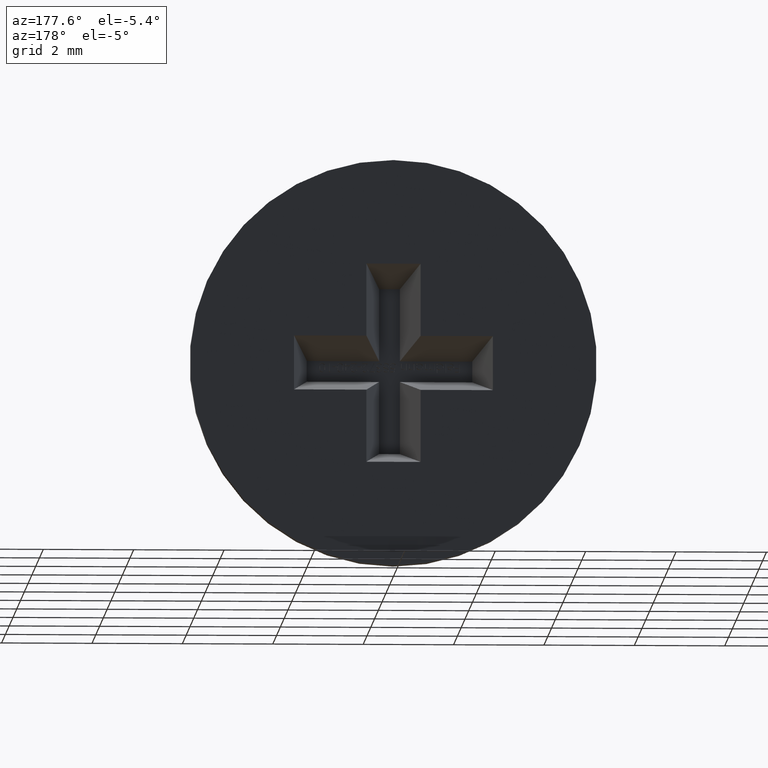
[diagram: clean part render]
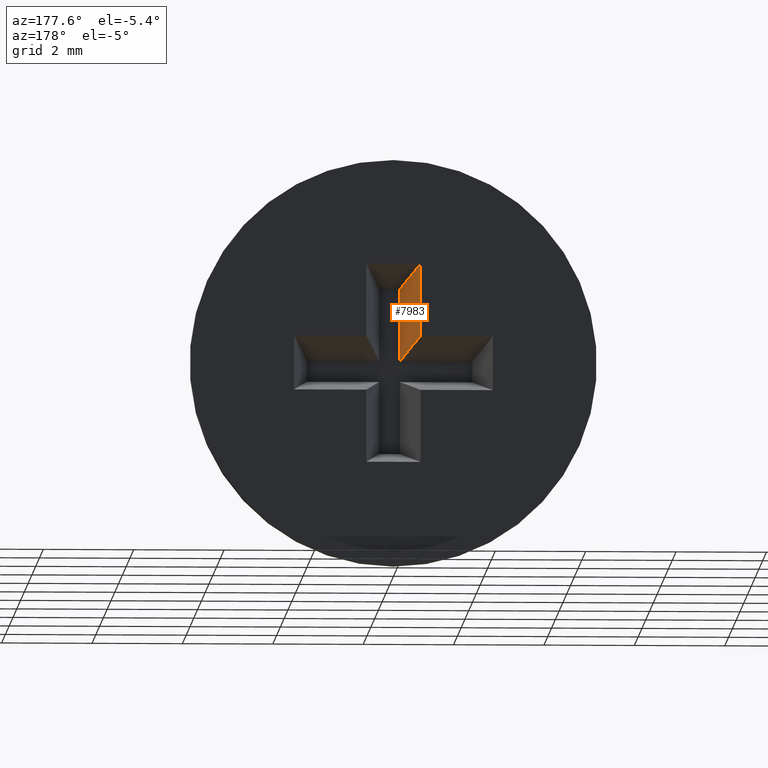
[diagram: same view with one face highlighted and labeled with its STEP entity id]
A machine part, auxiliary view. The second image highlights one B-rep face of the part: STEP entity #7983.
In plain terms, the highlighted planar face has unit normal (-0.9848, -0.1736, 0).
Its self-contained STEP definition (entity closure, byte-faithful):
#223 = CARTESIAN_POINT ( 'NONE',  ( -0.5999999999999996400, 10.00000000000000000, 0.5999999999999999800 ) ) ;
#260 = VERTEX_POINT ( 'NONE', #8926 ) ;
#425 = VECTOR ( 'NONE', #12482, 1000.000000000000000 ) ;
#3270 = LINE ( 'NONE', #11535, #9956 ) ;
#3275 = CARTESIAN_POINT ( 'NONE',  ( -0.2297133405122232200, 7.900000000000000400, 0.5999999999999999800 ) ) ;
#3622 = CARTESIAN_POINT ( 'NONE',  ( -0.5531663053212211300, 9.734392918822719000, 2.153166305321222200 ) ) ;
#3802 = LINE ( 'NONE', #3622, #12905 ) ;
#4278 = EDGE_CURVE ( 'NONE', #14238, #260, #3270, .T. ) ;
#4345 = DIRECTION ( 'NONE',  ( 1.355252715606880300E-016, 0.0000000000000000000, 1.000000000000000000 ) ) ;
#4961 = VECTOR ( 'NONE', #4345, 1000.000000000000000 ) ;
#5247 = VERTEX_POINT ( 'NONE', #9698 ) ;
#5397 = ORIENTED_EDGE ( 'NONE', *, *, #10713, .T. ) ;
#5970 = PLANE ( 'NONE',  #12052 ) ;
#6201 = DIRECTION ( 'NONE',  ( 0.1736481776669303600, -0.9848077530122080200, 0.0000000000000000000 ) ) ;
#6451 = ORIENTED_EDGE ( 'NONE', *, *, #13526, .F. ) ;
#6732 = EDGE_LOOP ( 'NONE', ( #5397, #8037, #6451, #9371 ) ) ;
#7640 = LINE ( 'NONE', #223, #425 ) ;
#7983 = ADVANCED_FACE ( 'NONE', ( #9071 ), #5970, .F. ) ;
#8037 = ORIENTED_EDGE ( 'NONE', *, *, #8225, .F. ) ;
#8225 = EDGE_CURVE ( 'NONE', #5247, #10188, #3802, .T. ) ;
#8336 = CARTESIAN_POINT ( 'NONE',  ( -0.2297133405122232800, 7.900000000000000400, 0.2297133405122235600 ) ) ;
#8926 = CARTESIAN_POINT ( 'NONE',  ( -0.5999999999999996400, 10.00000000000000000, 0.5999999999999999800 ) ) ;
#9071 = FACE_OUTER_BOUND ( 'NONE', #6732, .T. ) ;
#9123 = DIRECTION ( 'NONE',  ( -0.1710878697460355100, 0.9702875252478139200, 0.1710878697460355400 ) ) ;
#9371 = ORIENTED_EDGE ( 'NONE', *, *, #4278, .T. ) ;
#9698 = CARTESIAN_POINT ( 'NONE',  ( -0.2297133405122230600, 7.900000000000000400, 1.829713340512223700 ) ) ;
#9956 = VECTOR ( 'NONE', #12647, 1000.000000000000100 ) ;
#10188 = VERTEX_POINT ( 'NONE', #12262 ) ;
#10713 = EDGE_CURVE ( 'NONE', #260, #10188, #7640, .T. ) ;
#11535 = CARTESIAN_POINT ( 'NONE',  ( -0.5999999999999996400, 10.00000000000000000, 0.5999999999999999800 ) ) ;
#11559 = DIRECTION ( 'NONE',  ( -0.9848077530122081300, -0.1736481776669303900, 1.334663381620505000E-016 ) ) ;
#12052 = AXIS2_PLACEMENT_3D ( 'NONE', #13808, #11559, #6201 ) ;
#12262 = CARTESIAN_POINT ( 'NONE',  ( -0.5999999999999994200, 10.00000000000000000, 2.200000000000000200 ) ) ;
#12482 = DIRECTION ( 'NONE',  ( 1.355252715606880300E-016, 0.0000000000000000000, 1.000000000000000000 ) ) ;
#12647 = DIRECTION ( 'NONE',  ( -0.1710878697460355100, 0.9702875252478139200, 0.1710878697460355400 ) ) ;
#12905 = VECTOR ( 'NONE', #9123, 1000.000000000000100 ) ;
#13526 = EDGE_CURVE ( 'NONE', #14238, #5247, #14066, .T. ) ;
#13808 = CARTESIAN_POINT ( 'NONE',  ( -0.5999999999999996400, 10.00000000000000000, 0.5999999999999999800 ) ) ;
#14066 = LINE ( 'NONE', #3275, #4961 ) ;
#14238 = VERTEX_POINT ( 'NONE', #8336 ) ;